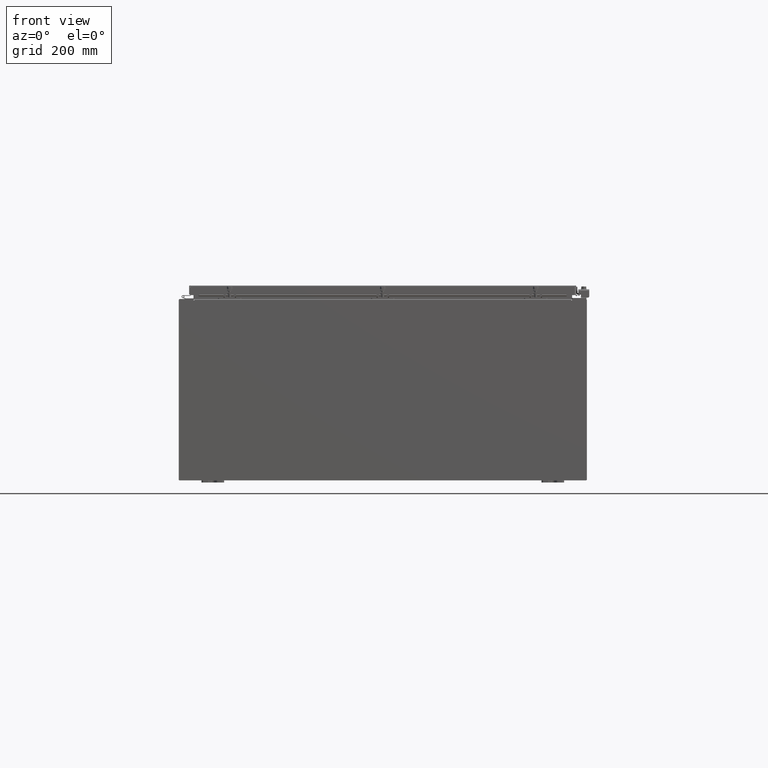
[diagram: clean part render]
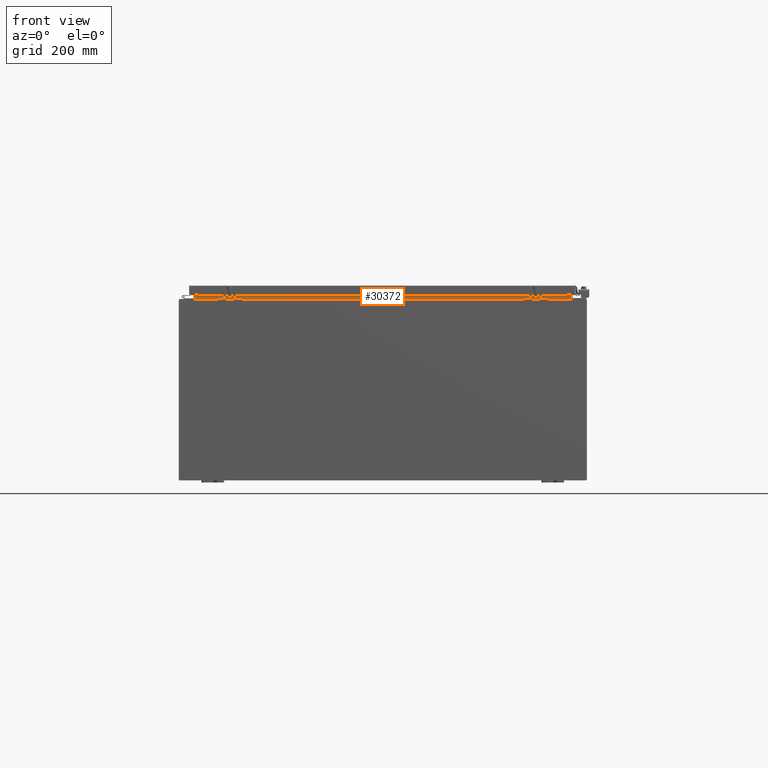
[diagram: same view with one face highlighted and labeled with its STEP entity id]
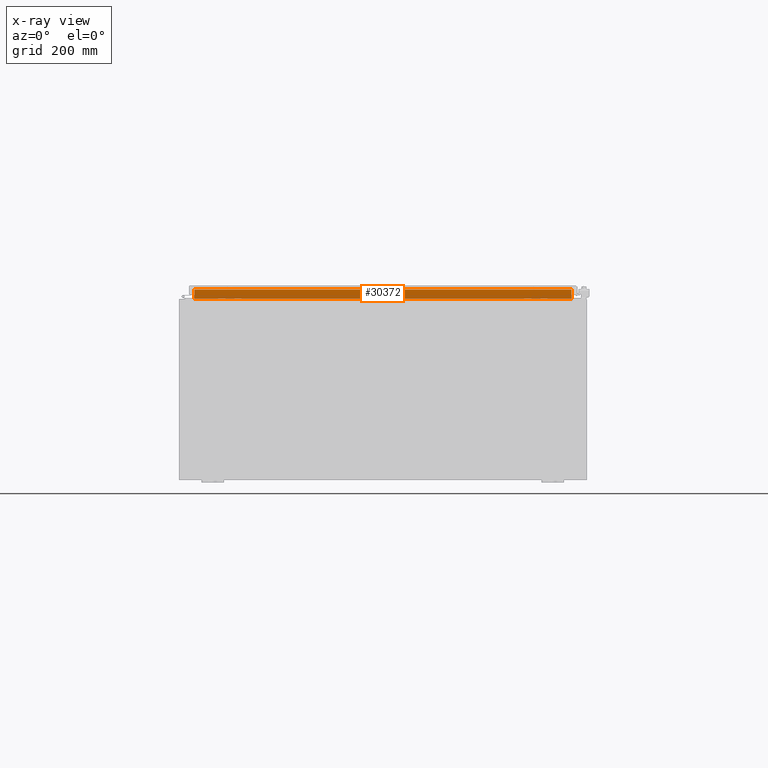
[diagram: x-ray of the same camera — body ghosted, the highlighted face saturated]
A machine part, front view. The second image highlights one B-rep face of the part: STEP entity #30372.
The next image is the same camera in x-ray: the body ghosted, the highlighted face saturated — about 0% of this face is hidden behind the body in this view.
In plain terms, the highlighted planar face has unit normal (0, -1, 0).
Its self-contained STEP definition (entity closure, byte-faithful):
#4199 = LINE ( 'NONE', #34748, #16641 ) ;
#6903 = EDGE_CURVE ( 'NONE', #26839, #10920, #53529, .T. ) ;
#8181 = DIRECTION ( 'NONE',  ( 1.000000000000000000, 0.0000000000000000000, -9.852071239142149700E-017 ) ) ;
#9300 = VECTOR ( 'NONE', #28948, 39.37007874015748100 ) ;
#9831 = DIRECTION ( 'NONE',  ( -0.0000000000000000000, -0.0000000000000000000, 1.000000000000000000 ) ) ;
#10920 = VERTEX_POINT ( 'NONE', #24824 ) ;
#11500 = EDGE_CURVE ( 'NONE', #45012, #26839, #27761, .T. ) ;
#13533 = PLANE ( 'NONE',  #35358 ) ;
#16641 = VECTOR ( 'NONE', #9831, 39.37007874015748100 ) ;
#20947 = FACE_OUTER_BOUND ( 'NONE', #23722, .T. ) ;
#21103 = CARTESIAN_POINT ( 'NONE',  ( -16.63720000000000000, -1.300300000000002000, 8.837600000000003700 ) ) ;
#21753 = CARTESIAN_POINT ( 'NONE',  ( 0.0000000000000000000, -1.300299999999999800, 0.0000000000000000000 ) ) ;
#21920 = DIRECTION ( 'NONE',  ( 0.0000000000000000000, -0.0000000000000000000, 1.000000000000000000 ) ) ;
#22712 = LINE ( 'NONE', #28974, #32413 ) ;
#23527 = CARTESIAN_POINT ( 'NONE',  ( 16.63720000000000400, -1.300299999999999800, 8.013000000000005200 ) ) ;
#23722 = EDGE_LOOP ( 'NONE', ( #26358, #31473, #33200, #38609 ) ) ;
#24824 = CARTESIAN_POINT ( 'NONE',  ( -16.63720000000000400, -1.300299999999999800, 8.013000000000005200 ) ) ;
#25752 = EDGE_CURVE ( 'NONE', #10920, #44420, #22712, .T. ) ;
#26358 = ORIENTED_EDGE ( 'NONE', *, *, #6903, .F. ) ;
#26839 = VERTEX_POINT ( 'NONE', #21103 ) ;
#27456 = CARTESIAN_POINT ( 'NONE',  ( 16.63720000000000000, -1.300299999999999800, 8.837600000000003700 ) ) ;
#27761 = LINE ( 'NONE', #48232, #38797 ) ;
#28948 = DIRECTION ( 'NONE',  ( -0.0000000000000000000, -0.0000000000000000000, -1.000000000000000000 ) ) ;
#28974 = CARTESIAN_POINT ( 'NONE',  ( -16.63720000000000000, -1.300300000000000200, 8.013000000000007000 ) ) ;
#30372 = ADVANCED_FACE ( 'NONE', ( #20947 ), #13533, .T. ) ;
#31473 = ORIENTED_EDGE ( 'NONE', *, *, #11500, .F. ) ;
#32413 = VECTOR ( 'NONE', #8181, 39.37007874015748100 ) ;
#33200 = ORIENTED_EDGE ( 'NONE', *, *, #34424, .F. ) ;
#34424 = EDGE_CURVE ( 'NONE', #44420, #45012, #4199, .T. ) ;
#34748 = CARTESIAN_POINT ( 'NONE',  ( 16.63720000000000000, -1.300299999999999800, 8.925300000000003600 ) ) ;
#35358 = AXIS2_PLACEMENT_3D ( 'NONE', #21753, #46758, #21920 ) ;
#38609 = ORIENTED_EDGE ( 'NONE', *, *, #25752, .F. ) ;
#38797 = VECTOR ( 'NONE', #48242, 39.37007874015748100 ) ;
#44420 = VERTEX_POINT ( 'NONE', #23527 ) ;
#45012 = VERTEX_POINT ( 'NONE', #27456 ) ;
#45274 = CARTESIAN_POINT ( 'NONE',  ( -16.63720000000000000, -1.300299999999999800, 8.000000000000007100 ) ) ;
#46758 = DIRECTION ( 'NONE',  ( 0.0000000000000000000, 1.000000000000000000, 0.0000000000000000000 ) ) ;
#48232 = CARTESIAN_POINT ( 'NONE',  ( 16.63720000000000000, -1.300300000000002000, 8.837600000000003700 ) ) ;
#48242 = DIRECTION ( 'NONE',  ( -1.000000000000000000, -0.0000000000000000000, -0.0000000000000000000 ) ) ;
#53529 = LINE ( 'NONE', #45274, #9300 ) ;